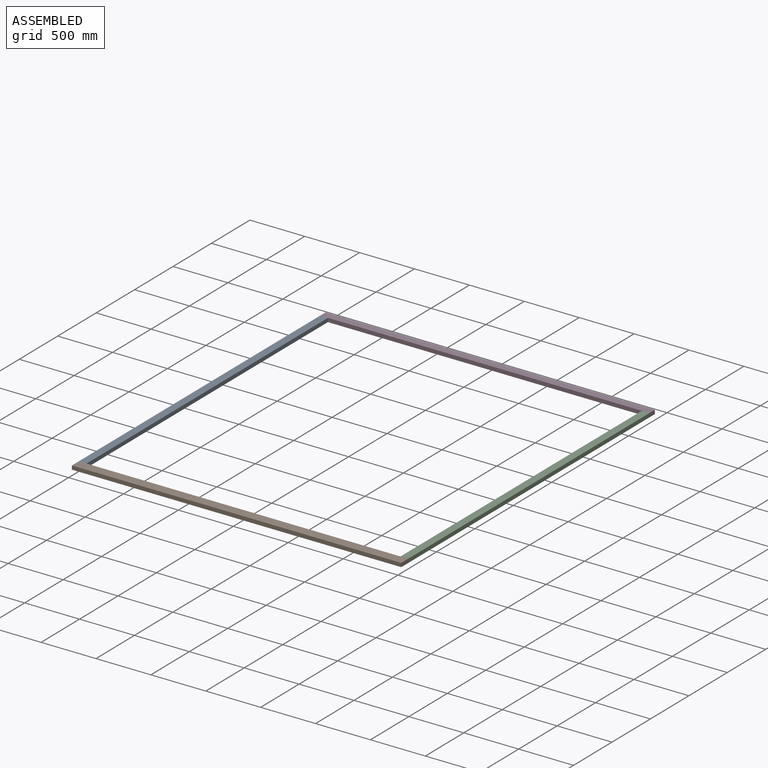
[diagram: assembled view]
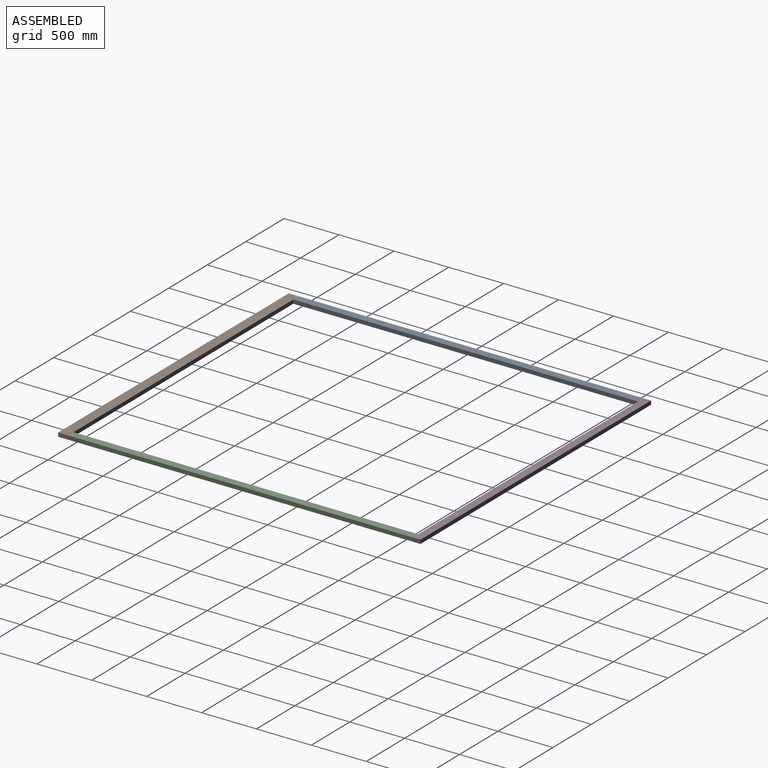
[diagram: assembled view, second angle]
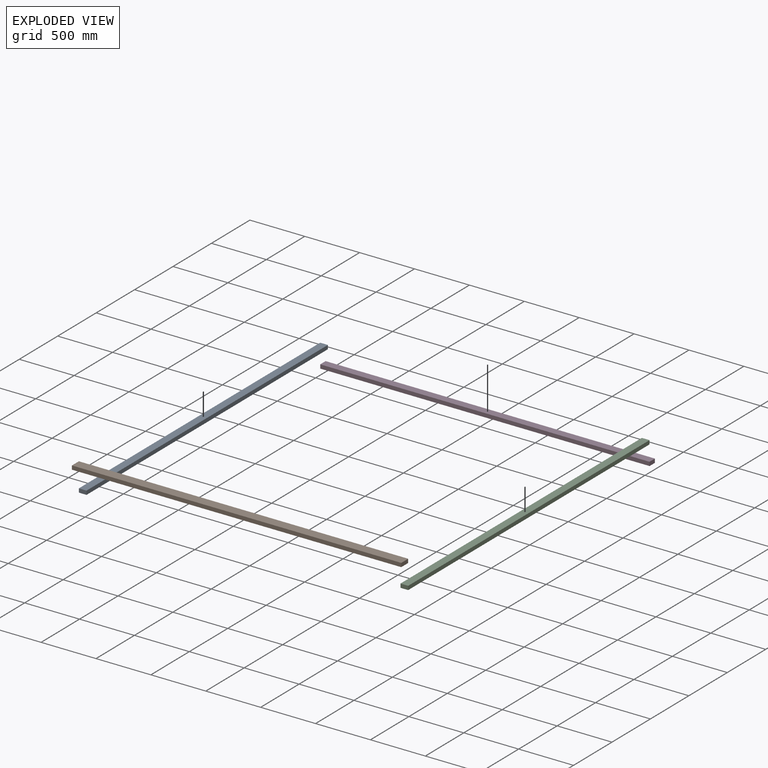
[diagram: exploded view]
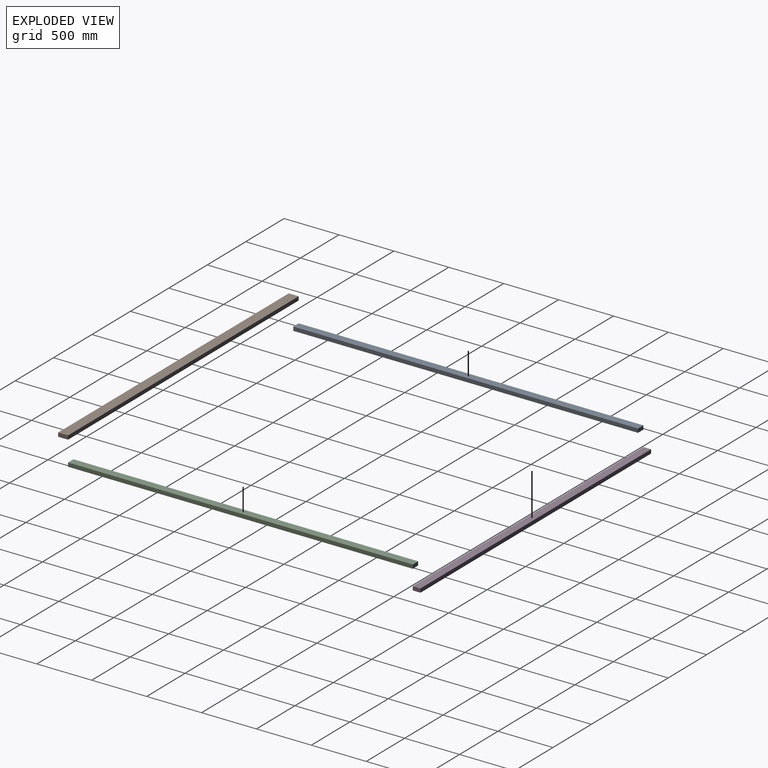
[diagram: exploded view, second angle]
ASSEMBLY  parts=4 mates=3
PART A: 6 faces, bbox 3140x70x35 mm
  f0: plane 3140x35mm, normal (0,1,0), area 109900mm2, adj f1,f3,f4,f5
  f1: plane 70x35mm, normal (-1,0,0), area 2450mm2, adj f0,f2,f4,f5
  f2: plane 3140x35mm, normal (0,-1,0), area 109900mm2, adj f1,f3,f4,f5
  f3: plane 70x35mm, normal (1,0,0), area 2450mm2, adj f0,f2,f4,f5
  f4: plane 3140x70mm, normal (0,0,1), area 219800mm2, adj f0,f1,f2,f3
  f5: plane 3140x70mm, normal (0,0,-1), area 219800mm2, adj f0,f1,f2,f3
PART B: 6 faces, bbox 3000x90x35 mm
  f0: plane 3000x35mm, normal (0,1,0), area 105000mm2, adj f1,f3,f4,f5
  f1: plane 90x35mm, normal (-1,0,0), area 3150mm2, adj f0,f2,f4,f5
  f2: plane 3000x35mm, normal (0,-1,0), area 105000mm2, adj f1,f3,f4,f5
  f3: plane 90x35mm, normal (1,0,0), area 3150mm2, adj f0,f2,f4,f5
  f4: plane 3000x90mm, normal (0,0,1), area 270000mm2, adj f0,f1,f2,f3
  f5: plane 3000x90mm, normal (0,0,-1), area 270000mm2, adj f0,f1,f2,f3
PART C: same geometry as A
PART D: 6 faces, bbox 3000x70x35 mm
  f0: plane 3000x35mm, normal (0,1,0), area 105000mm2, adj f1,f3,f4,f5
  f1: plane 70x35mm, normal (-1,0,0), area 2450mm2, adj f0,f2,f4,f5
  f2: plane 3000x35mm, normal (0,-1,0), area 105000mm2, adj f1,f3,f4,f5
  f3: plane 70x35mm, normal (1,0,0), area 2450mm2, adj f0,f2,f4,f5
  f4: plane 3000x70mm, normal (0,0,1), area 210000mm2, adj f0,f1,f2,f3
  f5: plane 3000x70mm, normal (0,0,-1), area 210000mm2, adj f0,f1,f2,f3
PLACE A rot(axis=(0,0,1),90deg) t=(-2080.76,1339.91,-17.5)mm
PLACE B rot(axis=(1,0,0),0deg) t=(-1640.95,-1409.38,-17.5)mm
PLACE C rot(axis=(0,0,1),90deg) t=(849.24,1339.91,-17.5)mm
PLACE D rot(axis=(1,0,0),0deg) t=(-1645.23,2028.07,-17.5)mm
MATE fastened A.f4 <-> B.f4  axis (0,0,1) through (-3318.73,-339.49,17.5)mm
MATE fastened D.f4 <-> C.f4  axis (0,0,1) through (-318.73,2800.51,17.5)mm
MATE fastened C.f4 <-> B.f4  axis (0,0,1) through (-318.73,-339.49,17.5)mm
